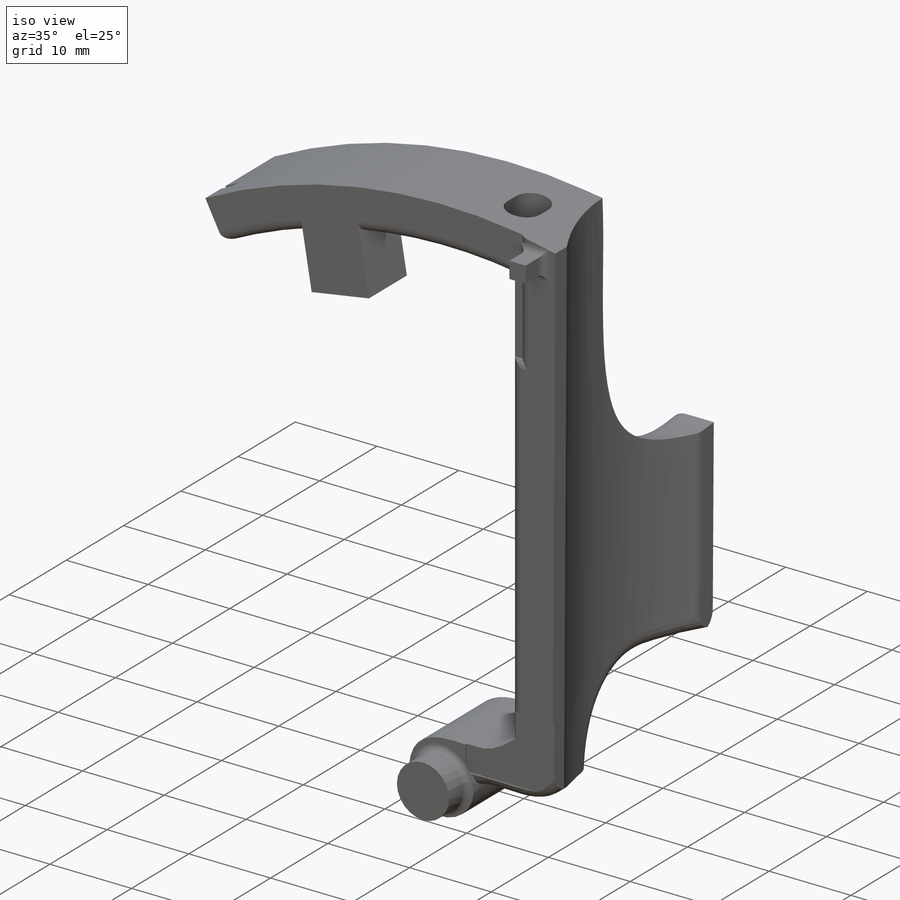
[diagram: iso view]
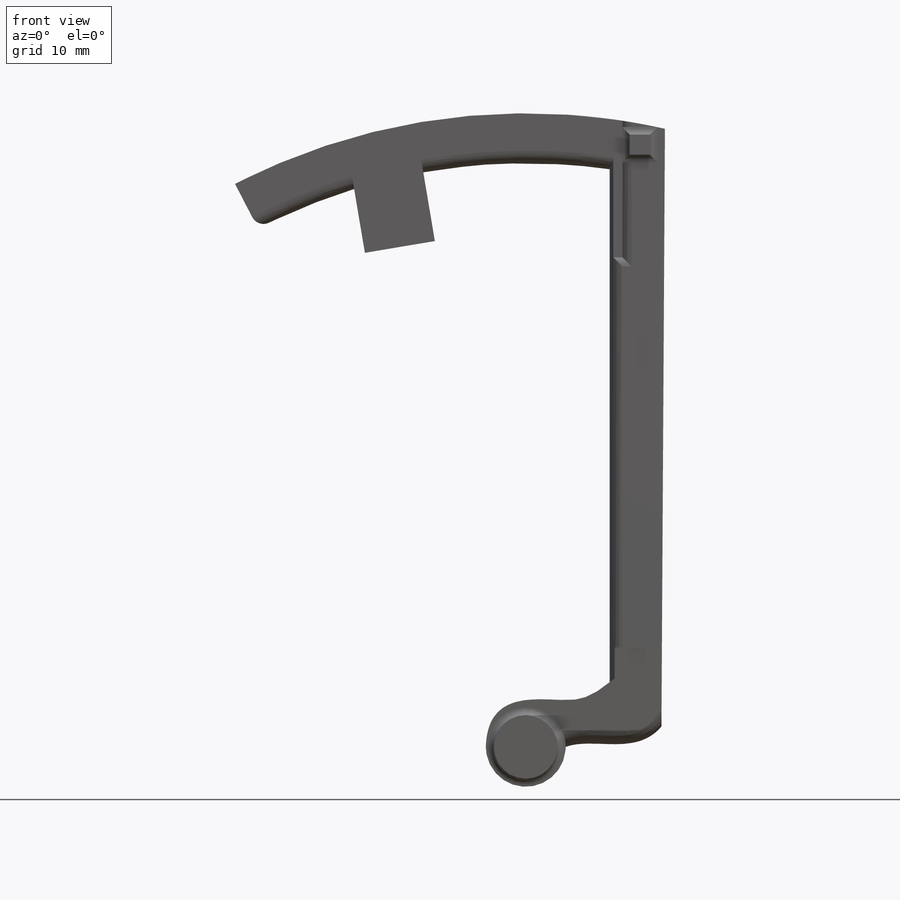
[diagram: front view]
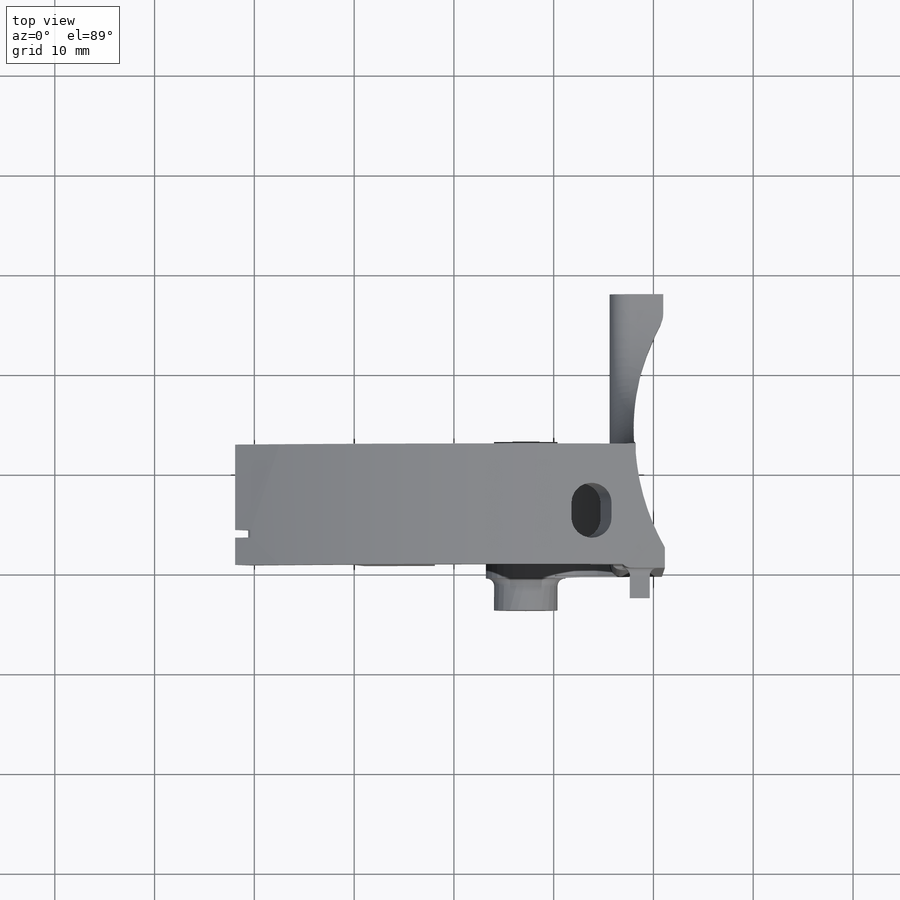
[diagram: top view]
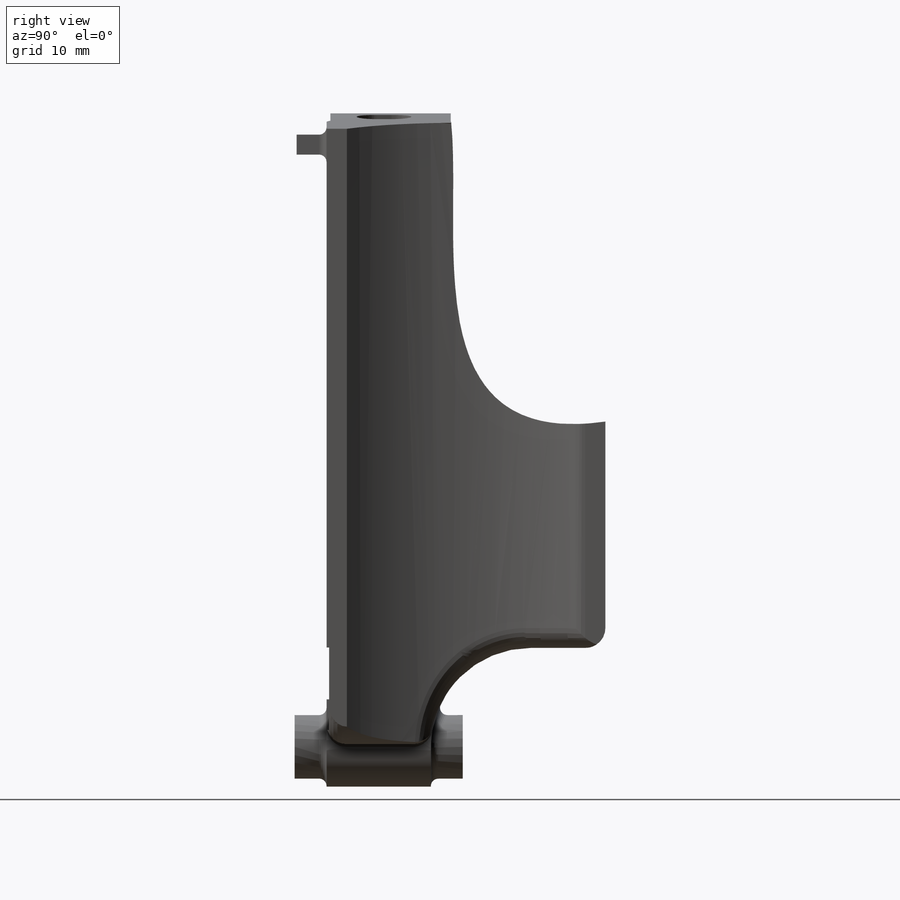
[diagram: right view]
SOLIDWORKS PART (.sldprt)
format: sldprt  version: not decoded by parser v0  size: 599,552 bytes
history: native  units: mm
features: sketch x14, fillet x9, extrude x7, cut_extrude x7, plane x2, material x1 (+12 scaffold rows collapsed)
feature tree (52):
  scaffold x12  (default folders/planes/origin — collapsed)
  material  "Material <not specified>"
  sketch  "Sketch1"  dims[c1.D1=0.02mm c1.D2=6.0mm c1.D3=~122.350066mm c1.D4=~136.233224mm c2.D2=~127.048563mm c2.D3=~63.524282mm c3.D2=4.0mm c3.D1=63.5mm c4.D2=8.0mm c4.D1=~6.034862mm c5.D2=~57.465138mm c5.D3=5.08mm c5.D4=5.08mm c6.D3=63.5mm c6.D2=5.08mm c7.D3=63.5mm c7.D2=~51.350768mm c8.D2=~0.334532deg c9.D2=~51.350768mm c10.D2=~0.334532deg c11.D2=~51.350768mm c12.D2=~0.334532deg c13.D2=~61.948834mm c14.D2=40.0deg c14.D3=5.0mm]
  extrude  "Boss-Extrude1"  Depth=10.44702mm
  sketch  "Sketch2"  dims[D1=6.3754mm]
  extrude  "Boss-Extrude2"  Depth=3.2004mm
  sketch  "Sketch3"  dims[D1=6.3754mm]
  extrude  "Boss-Extrude3"  Depth=3.2004mm
  sketch  "Sketch6"
  extrude  "Boss-Extrude5"  Depth=17.49298mm
  plane  "Plane7"
  sketch  "Sketch4"
  extrude  "Boss-Extrude4"  Depth=2mm
  sketch  "Sketch19"  dims[D1=~7.882452mm D2=~17.49298mm]
  cut_extrude  "Cut-Extrude1"  [1 undecoded]
  sketch  "Sketch20"  dims[D1=23.368mm D2=2.03mm]
  cut_extrude  "Cut-Extrude2"  Depth=3mm
  fillet  "Fillet7"  Radius=22.86mm
  fillet  "Fillet1"  Radius=10mm
  fillet  "Fillet2"  Radius=2mm
  plane  "Plane6"
  sketch  "Sketch26"  dims[D1=7.0mm D2=7.112mm D3=10.16mm]
  extrude  "Boss-Extrude7"  Depth=7mm
  sketch  "Sketch27"  dims[D1=4.14mm]
  cut_extrude  "Cut-Extrude3"  Depth=7mm
  fillet  "Fillet3"  Radius=0.75mm
  sketch  "Sketch28"  dims[D1=47.93mm D2=~8.30045mm]
  cut_extrude  "Cut-Extrude4"  Depth=0.254mm
  sketch  "Sketch29"  dims[c1.D1=2.0mm c1.D2=2.0mm c1.D3=3.0mm c2.D3=~99.52392deg c3.D3=3.0mm c4.D3=~0.334532deg c5.D3=1.52mm]
  extrude  "Boss-Extrude8"  Depth=3mm
  fillet  "Fillet4"  Radius=0.75mm
  sketch  "Sketch30"  dims[D1=2.0mm D2=5.0mm D3=4.46mm]
  cut_extrude  "Cut-Extrude5"  [1 undecoded]
  sketch  "Sketch31"  dims[D1=0.76mm D2=5.5mm D3=3.5mm]
  cut_extrude  "Cut-Extrude6"  Depth=1.27mm
  sketch  "Sketch32"
  cut_extrude  "Cut-Extrude7"  Depth=0.381mm
  fillet  "Fillet5"  Radius=1.9812mm
  fillet  "Fillet9"  Radius=1.27mm
  fillet  "Fillet10"  Radius=0.508mm
  fillet  "Fillet11"  Radius=1.27mm
decode coverage: 32 of 37 modeling features carry decoded parameters
note: ~ marks probable driven/reference dimensions
note: 2 parameter values undecoded
note: suppression state not decoded; provenance and decode notes live in map.json
